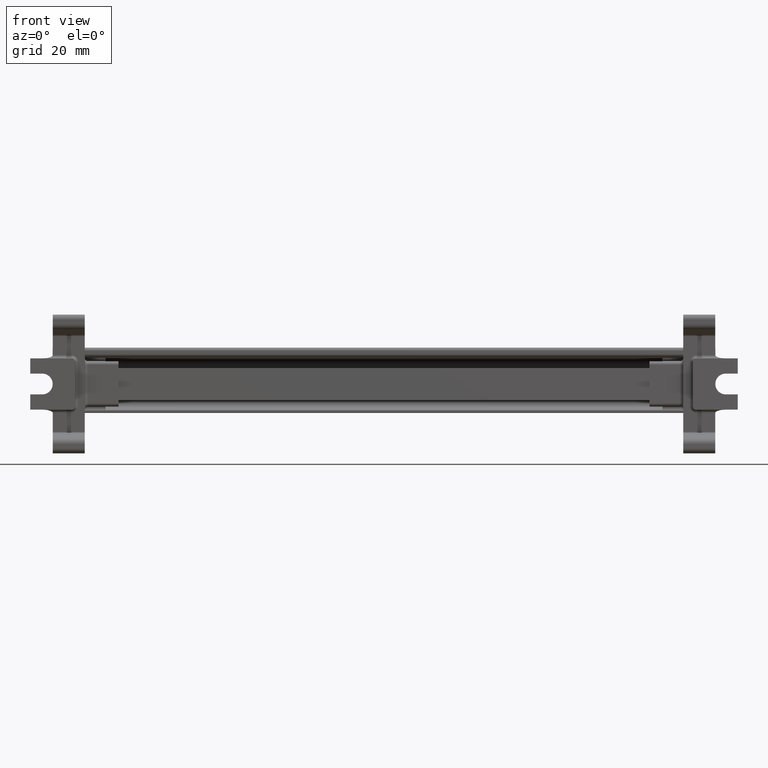
[diagram: clean part render]
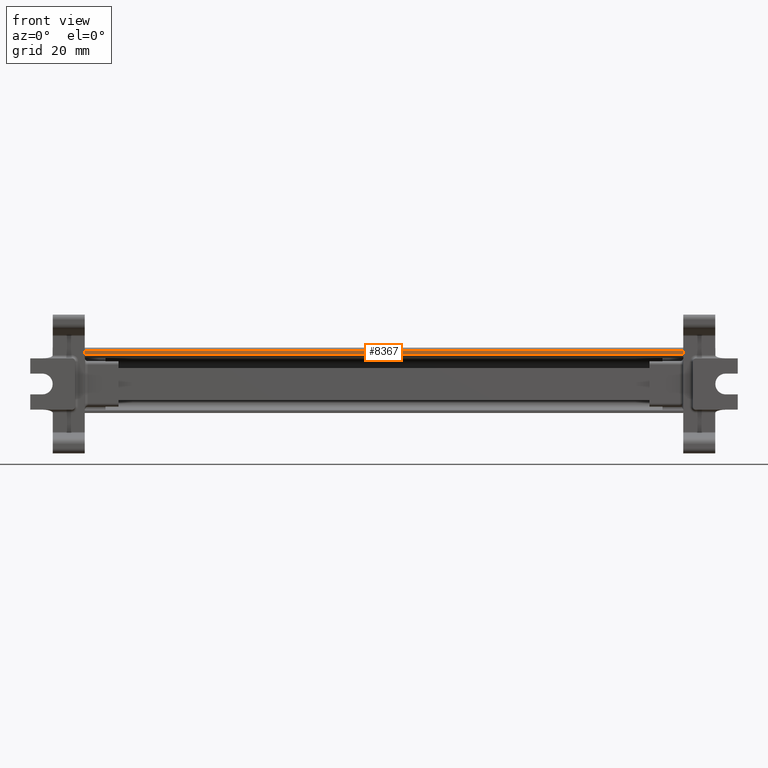
[diagram: same view with one face highlighted and labeled with its STEP entity id]
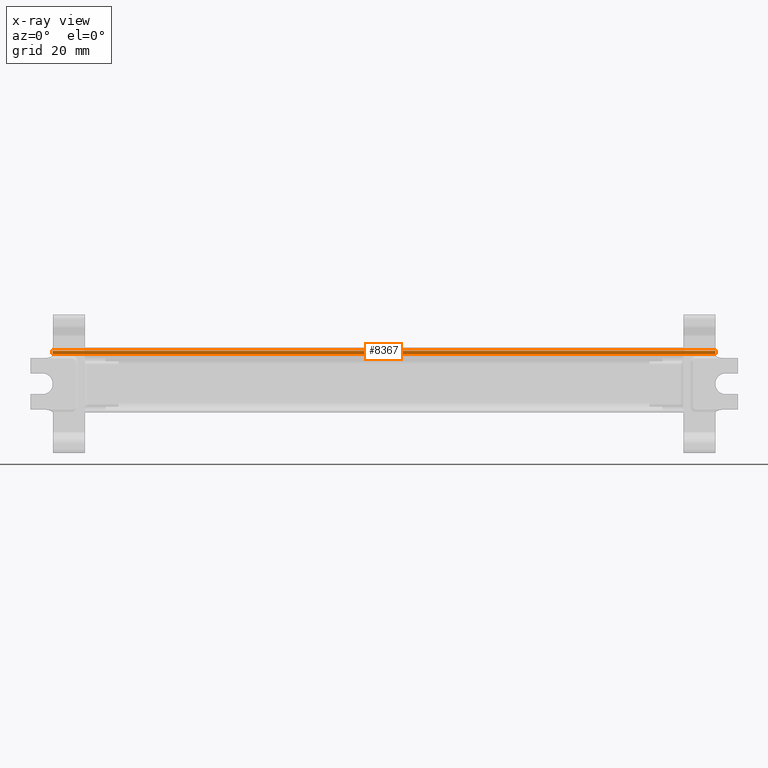
[diagram: x-ray of the same camera — body ghosted, the highlighted face saturated]
A machine part, front view. The second image highlights one B-rep face of the part: STEP entity #8367.
The next image is the same camera in x-ray: the body ghosted, the highlighted face saturated — about 0% of this face is hidden behind the body in this view.
In plain terms, the highlighted planar face has unit normal (0, 1, 0).
Its self-contained STEP definition (entity closure, byte-faithful):
#868 = PLANE ( 'NONE',  #16079 ) ;
#3402 = DIRECTION ( 'NONE',  ( 1.000000000000000000, -7.897574947184911360E-15, 1.449706631854831996E-09 ) ) ;
#4339 = VECTOR ( 'NONE', #13852, 1000.000000000000000 ) ;
#5838 = EDGE_CURVE ( 'NONE', #29901, #14955, #23434, .T. ) ;
#6798 = CARTESIAN_POINT ( 'NONE',  ( -161.4573995880570010, 50.09022417907639380, 48.40883257337350187 ) ) ;
#8367 = ADVANCED_FACE ( 'NONE', ( #9436 ), #868, .F. ) ;
#8758 = CARTESIAN_POINT ( 'NONE',  ( -161.4573996367769837, 50.09026799763079651, 14.80178039373859988 ) ) ;
#8780 = EDGE_CURVE ( 'NONE', #29901, #26487, #36048, .T. ) ;
#8940 = LINE ( 'NONE', #35250, #28472 ) ;
#9436 = FACE_OUTER_BOUND ( 'NONE', #35246, .T. ) ;
#10777 = DIRECTION ( 'NONE',  ( 6.007374976917549997E-15, 0.9999999999991501243, 1.303849985042990380E-06 ) ) ;
#10915 = DIRECTION ( 'NONE',  ( 1.000000000000000000, 0.0000000000000000000, -4.607412697649780062E-09 ) ) ;
#11091 = ORIENTED_EDGE ( 'NONE', *, *, #35489, .T. ) ;
#12155 = ORIENTED_EDGE ( 'NONE', *, *, #40790, .F. ) ;
#12660 = LINE ( 'NONE', #30191, #17655 ) ;
#13852 = DIRECTION ( 'NONE',  ( 1.000000000000000000, -7.897574947184900316E-15, 1.449706631854835925E-09 ) ) ;
#14955 = VERTEX_POINT ( 'NONE', #26516 ) ;
#15410 = CARTESIAN_POINT ( 'NONE',  ( -161.4573995894864993, 50.09022546475549831, 47.42276887386790207 ) ) ;
#15784 = ORIENTED_EDGE ( 'NONE', *, *, #8780, .T. ) ;
#16079 = AXIS2_PLACEMENT_3D ( 'NONE', #33073, #10777, #10915 ) ;
#17655 = VECTOR ( 'NONE', #35996, 999.9999999999998863 ) ;
#20623 = CARTESIAN_POINT ( 'NONE',  ( 45.05155904734029804, 50.09022546475350168, 47.42276916934569897 ) ) ;
#20762 = VERTEX_POINT ( 'NONE', #20623 ) ;
#20943 = VECTOR ( 'NONE', #38096, 999.9999999999998863 ) ;
#23189 = ORIENTED_EDGE ( 'NONE', *, *, #5838, .F. ) ;
#23434 = LINE ( 'NONE', #39694, #4339 ) ;
#26487 = VERTEX_POINT ( 'NONE', #15410 ) ;
#26516 = CARTESIAN_POINT ( 'NONE',  ( 45.05155904590999683, 50.09022417907469560, 48.40883257337350187 ) ) ;
#28472 = VECTOR ( 'NONE', #3402, 1000.000000000000000 ) ;
#29901 = VERTEX_POINT ( 'NONE', #6798 ) ;
#30191 = CARTESIAN_POINT ( 'NONE',  ( 45.05155909463110220, 50.09026799762920490, 14.80178039373859988 ) ) ;
#33073 = CARTESIAN_POINT ( 'NONE',  ( -121.2823041798986026, 50.09026799763010018, 14.80178015260380242 ) ) ;
#35246 = EDGE_LOOP ( 'NONE', ( #11091, #12155, #23189, #15784 ) ) ;
#35250 = CARTESIAN_POINT ( 'NONE',  ( -121.2823042271893996, 50.09022546475440407, 47.42276892821040235 ) ) ;
#35489 = EDGE_CURVE ( 'NONE', #26487, #20762, #8940, .T. ) ;
#35996 = DIRECTION ( 'NONE',  ( 1.449706643451254020E-09, 1.303849985042992074E-06, -0.9999999999991501243 ) ) ;
#36048 = LINE ( 'NONE', #8758, #20943 ) ;
#38096 = DIRECTION ( 'NONE',  ( -1.449706643430436158E-09, 1.303849985042992074E-06, -0.9999999999991501243 ) ) ;
#39694 = CARTESIAN_POINT ( 'NONE',  ( -121.2823042286189974, 50.09022417907569746, 48.40883233223830473 ) ) ;
#40790 = EDGE_CURVE ( 'NONE', #14955, #20762, #12660, .T. ) ;